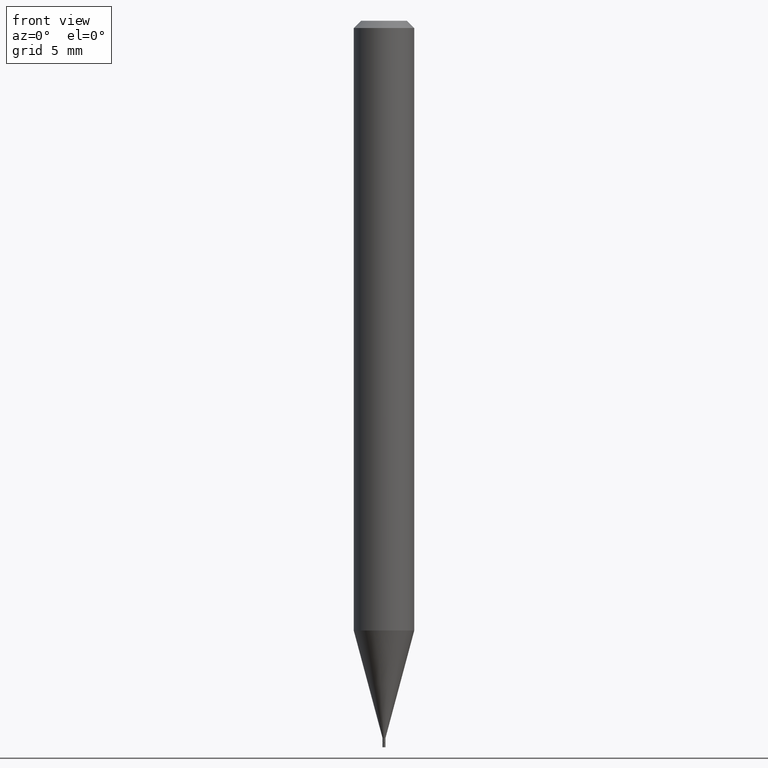
[diagram: clean part render]
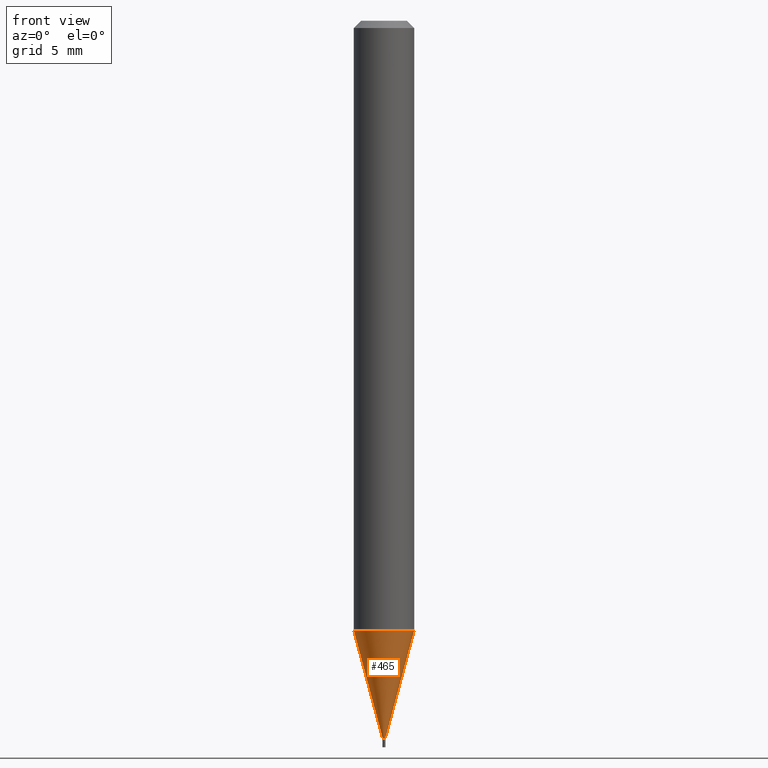
[diagram: same view with one face highlighted and labeled with its STEP entity id]
A machine part, front view. The second image highlights one B-rep face of the part: STEP entity #465.
In plain terms, the highlighted conical surface has half-angle 15 deg.
Its self-contained STEP definition (entity closure, byte-faithful):
#3 = DIRECTION ( 'NONE',  ( -2.445468806185136597E-29, 3.491481338843145583E-15, 1.000000000000000000 ) ) ;
#10 = CIRCLE ( 'NONE', #178, 0.06250000000000000000 ) ;
#37 = ORIENTED_EDGE ( 'NONE', *, *, #193, .F. ) ;
#38 = DIRECTION ( 'NONE',  ( -0.2588190451025213501, 5.211531920934551042E-15, 0.9659258262890682012 ) ) ;
#43 = FACE_OUTER_BOUND ( 'NONE', #463, .T. ) ;
#48 = LINE ( 'NONE', #190, #198 ) ;
#69 = CARTESIAN_POINT ( 'NONE',  ( 3.621739301960187407E-29, -5.170883862826698675E-15, -1.481000000000000094 ) ) ;
#76 = DIRECTION ( 'NONE',  ( 1.000000000000000000, -6.982962677686191769E-15, 0.000000000000000000 ) ) ;
#105 = CARTESIAN_POINT ( 'NONE',  ( 0.06250000000000000000, -4.832011078042738278E-15, -1.258942976949652293 ) ) ;
#116 = CARTESIAN_POINT ( 'NONE',  ( 3.621739301960187407E-29, -5.170883862826698675E-15, -1.481000000000000094 ) ) ;
#128 = CARTESIAN_POINT ( 'NONE',  ( 3.078705778896227940E-29, -4.395575910687346608E-15, -1.258942976949652293 ) ) ;
#144 = VERTEX_POINT ( 'NONE', #200 ) ;
#151 = DIRECTION ( 'NONE',  ( 0.2588190451025213501, 1.565188264969621968E-15, 0.9659258262890682012 ) ) ;
#152 = DIRECTION ( 'NONE',  ( -2.445468806185136597E-29, 3.491481338843145583E-15, 1.000000000000000000 ) ) ;
#158 = CARTESIAN_POINT ( 'NONE',  ( -0.002999999999999921566, -4.550527140795590610E-15, -1.481000000000000094 ) ) ;
#162 = ORIENTED_EDGE ( 'NONE', *, *, #321, .F. ) ;
#168 = VERTEX_POINT ( 'NONE', #158 ) ;
#178 = AXIS2_PLACEMENT_3D ( 'NONE', #128, #232, #264 ) ;
#190 = CARTESIAN_POINT ( 'NONE',  ( 0.002999999999999921566, -5.191832750859756717E-15, -1.481000000000000094 ) ) ;
#193 = EDGE_CURVE ( 'NONE', #323, #242, #10, .T. ) ;
#198 = VECTOR ( 'NONE', #151, 39.37007874015747433 ) ;
#200 = CARTESIAN_POINT ( 'NONE',  ( 0.002999999999999921566, -5.191832750859756717E-15, -1.481000000000000094 ) ) ;
#209 = CARTESIAN_POINT ( 'NONE',  ( -0.06250000000000000000, -3.951486700837283992E-15, -1.258942976949652293 ) ) ;
#210 = ORIENTED_EDGE ( 'NONE', *, *, #424, .T. ) ;
#211 = LINE ( 'NONE', #431, #338 ) ;
#232 = DIRECTION ( 'NONE',  ( -2.445468806185136597E-29, 3.491481338843145583E-15, 1.000000000000000000 ) ) ;
#242 = VERTEX_POINT ( 'NONE', #105 ) ;
#264 = DIRECTION ( 'NONE',  ( 1.000000000000000000, -6.982962677686262766E-15, 0.000000000000000000 ) ) ;
#321 = EDGE_CURVE ( 'NONE', #168, #323, #211, .T. ) ;
#323 = VERTEX_POINT ( 'NONE', #209 ) ;
#336 = EDGE_CURVE ( 'NONE', #168, #144, #396, .T. ) ;
#338 = VECTOR ( 'NONE', #38, 39.37007874015747433 ) ;
#352 = AXIS2_PLACEMENT_3D ( 'NONE', #116, #152, #401 ) ;
#367 = ORIENTED_EDGE ( 'NONE', *, *, #336, .T. ) ;
#384 = CONICAL_SURFACE ( 'NONE', #352, 0.002999999999999921566, 0.2617993877991500740 ) ;
#396 = CIRCLE ( 'NONE', #450, 0.002999999999999921566 ) ;
#401 = DIRECTION ( 'NONE',  ( 1.000000000000000000, -6.982962677686191769E-15, 0.000000000000000000 ) ) ;
#424 = EDGE_CURVE ( 'NONE', #144, #242, #48, .T. ) ;
#431 = CARTESIAN_POINT ( 'NONE',  ( -0.002999999999999921566, -5.149567580753896439E-15, -1.481000000000000094 ) ) ;
#450 = AXIS2_PLACEMENT_3D ( 'NONE', #69, #3, #76 ) ;
#463 = EDGE_LOOP ( 'NONE', ( #162, #367, #210, #37 ) ) ;
#465 = ADVANCED_FACE ( 'NONE', ( #43 ), #384, .T. ) ;